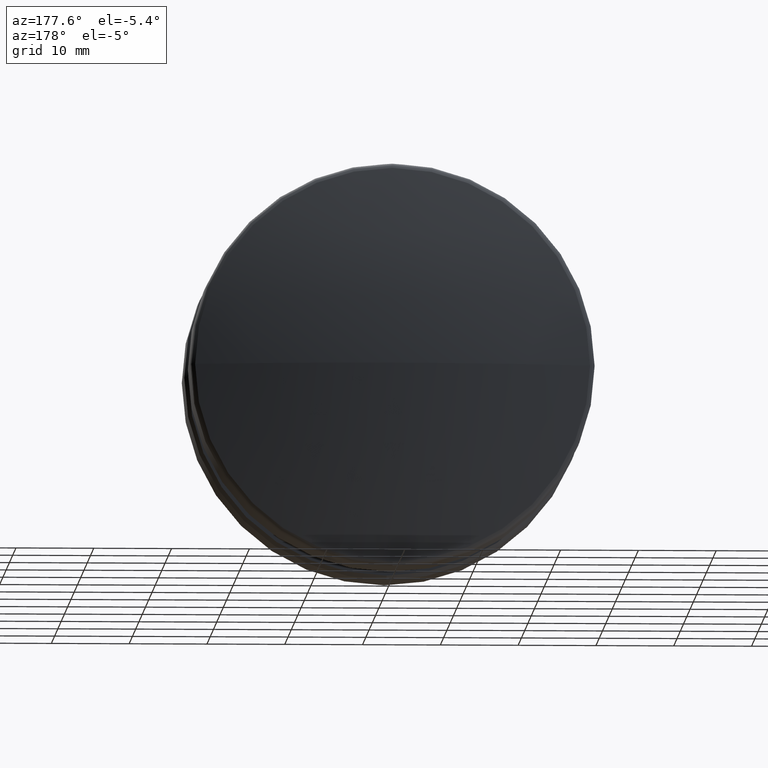
[diagram: clean part render]
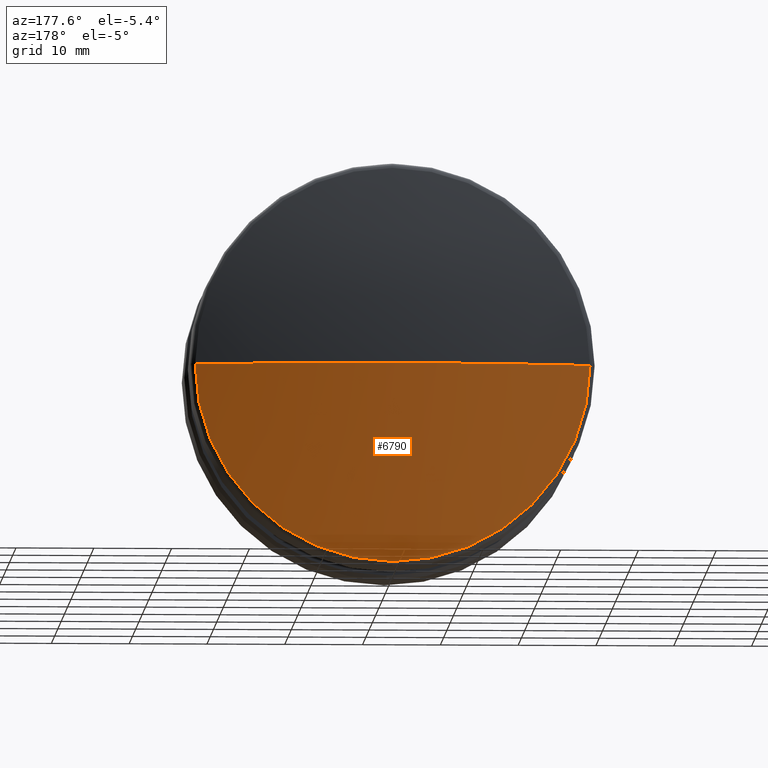
[diagram: same view with one face highlighted and labeled with its STEP entity id]
A machine part, auxiliary view. The second image highlights one B-rep face of the part: STEP entity #6790.
In plain terms, the highlighted spherical surface has radius 114.167 mm.
Its self-contained STEP definition (entity closure, byte-faithful):
#37 = VERTEX_POINT ( 'NONE', #9659 ) ;
#345 = EDGE_CURVE ( 'NONE', #8630, #4795, #11774, .T. ) ;
#1311 = DIRECTION ( 'NONE',  ( 1.000000000000000000, 0.000000000000000000, 0.000000000000000000 ) ) ;
#1354 = CIRCLE ( 'NONE', #15894, 114.1666666666664440 ) ;
#2452 = CARTESIAN_POINT ( 'NONE',  ( -25.37783004998529535, 16.14368109908169302, 3.107887834002000330E-15 ) ) ;
#2565 = FACE_OUTER_BOUND ( 'NONE', #13394, .T. ) ;
#3433 = AXIS2_PLACEMENT_3D ( 'NONE', #11780, #6710, #10598 ) ;
#4082 = CARTESIAN_POINT ( 'NONE',  ( 6.990692145132794096E-15, 19.00000000000000355, 0.000000000000000000 ) ) ;
#4173 = EDGE_CURVE ( 'NONE', #4795, #37, #10314, .T. ) ;
#4795 = VERTEX_POINT ( 'NONE', #2452 ) ;
#5011 = DIRECTION ( 'NONE',  ( 0.000000000000000000, 0.000000000000000000, -1.000000000000000000 ) ) ;
#5586 = EDGE_CURVE ( 'NONE', #37, #13995, #10742, .T. ) ;
#6260 = EDGE_CURVE ( 'NONE', #8630, #13995, #1354, .T. ) ;
#6710 = DIRECTION ( 'NONE',  ( 1.224646799147353207E-16, -0.000000000000000000, 1.000000000000000000 ) ) ;
#6790 = ADVANCED_FACE ( 'NONE', ( #2565 ), #12329, .T. ) ;
#7261 = AXIS2_PLACEMENT_3D ( 'NONE', #12877, #15586, #1311 ) ;
#7504 = CARTESIAN_POINT ( 'NONE',  ( 0.000000000000000000, 16.14368109908169302, 0.000000000000000000 ) ) ;
#8630 = VERTEX_POINT ( 'NONE', #4082 ) ;
#9189 = DIRECTION ( 'NONE',  ( -1.000000000000000000, 0.000000000000000000, 0.000000000000000000 ) ) ;
#9659 = CARTESIAN_POINT ( 'NONE',  ( 0.000000000000000000, 16.14368109908169302, -25.37783004998528824 ) ) ;
#10194 = DIRECTION ( 'NONE',  ( -0.000000000000000000, -1.000000000000000000, -0.000000000000000000 ) ) ;
#10299 = DIRECTION ( 'NONE',  ( 0.000000000000000000, 0.000000000000000000, -1.000000000000000000 ) ) ;
#10314 = CIRCLE ( 'NONE', #16223, 25.37783004998528824 ) ;
#10598 = DIRECTION ( 'NONE',  ( 1.000000000000000000, 0.000000000000000000, -1.224646799147353207E-16 ) ) ;
#10742 = CIRCLE ( 'NONE', #16213, 25.37783004998528824 ) ;
#11774 = CIRCLE ( 'NONE', #3433, 114.1666666666664440 ) ;
#11780 = CARTESIAN_POINT ( 'NONE',  ( 0.000000000000000000, -95.16666666666644403, 0.000000000000000000 ) ) ;
#11859 = ORIENTED_EDGE ( 'NONE', *, *, #5586, .F. ) ;
#12050 = ORIENTED_EDGE ( 'NONE', *, *, #6260, .T. ) ;
#12255 = ORIENTED_EDGE ( 'NONE', *, *, #4173, .F. ) ;
#12329 = SPHERICAL_SURFACE ( 'NONE', #7261, 114.1666666666664440 ) ;
#12335 = CARTESIAN_POINT ( 'NONE',  ( 25.37783004998529535, 16.14368109908169302, 0.000000000000000000 ) ) ;
#12456 = ORIENTED_EDGE ( 'NONE', *, *, #345, .F. ) ;
#12877 = CARTESIAN_POINT ( 'NONE',  ( 0.000000000000000000, -95.16666666666644403, 0.000000000000000000 ) ) ;
#13394 = EDGE_LOOP ( 'NONE', ( #12456, #12050, #11859, #12255 ) ) ;
#13995 = VERTEX_POINT ( 'NONE', #12335 ) ;
#15145 = DIRECTION ( 'NONE',  ( -0.000000000000000000, -1.000000000000000000, -0.000000000000000000 ) ) ;
#15211 = CARTESIAN_POINT ( 'NONE',  ( 0.000000000000000000, 16.14368109908169302, 0.000000000000000000 ) ) ;
#15586 = DIRECTION ( 'NONE',  ( 0.000000000000000000, 0.000000000000000000, 1.000000000000000000 ) ) ;
#15894 = AXIS2_PLACEMENT_3D ( 'NONE', #16179, #10299, #9189 ) ;
#16179 = CARTESIAN_POINT ( 'NONE',  ( 0.000000000000000000, -95.16666666666644403, 0.000000000000000000 ) ) ;
#16213 = AXIS2_PLACEMENT_3D ( 'NONE', #7504, #10194, #5011 ) ;
#16223 = AXIS2_PLACEMENT_3D ( 'NONE', #15211, #15145, #16324 ) ;
#16324 = DIRECTION ( 'NONE',  ( 0.000000000000000000, 0.000000000000000000, -1.000000000000000000 ) ) ;